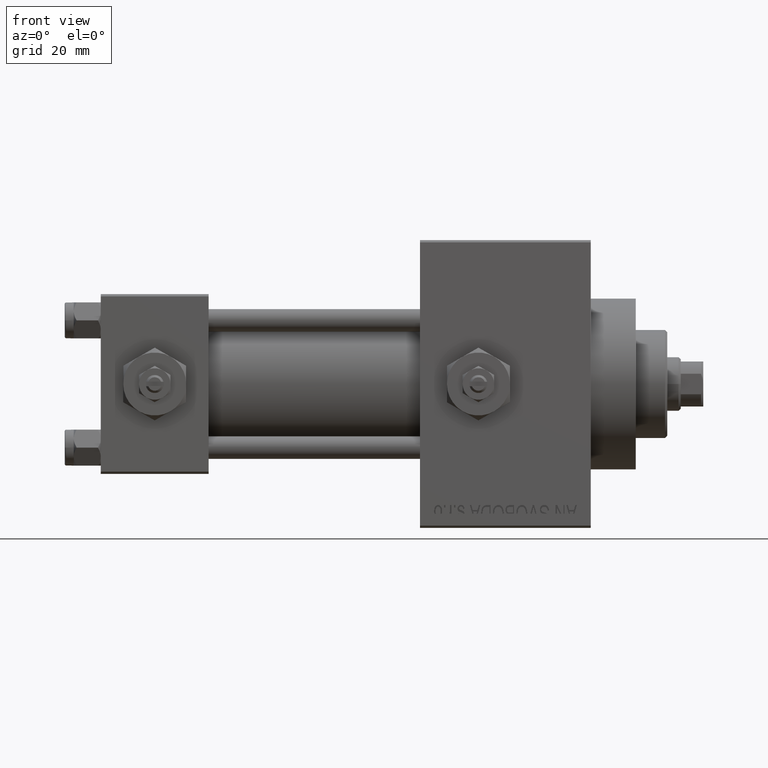
[diagram: clean part render]
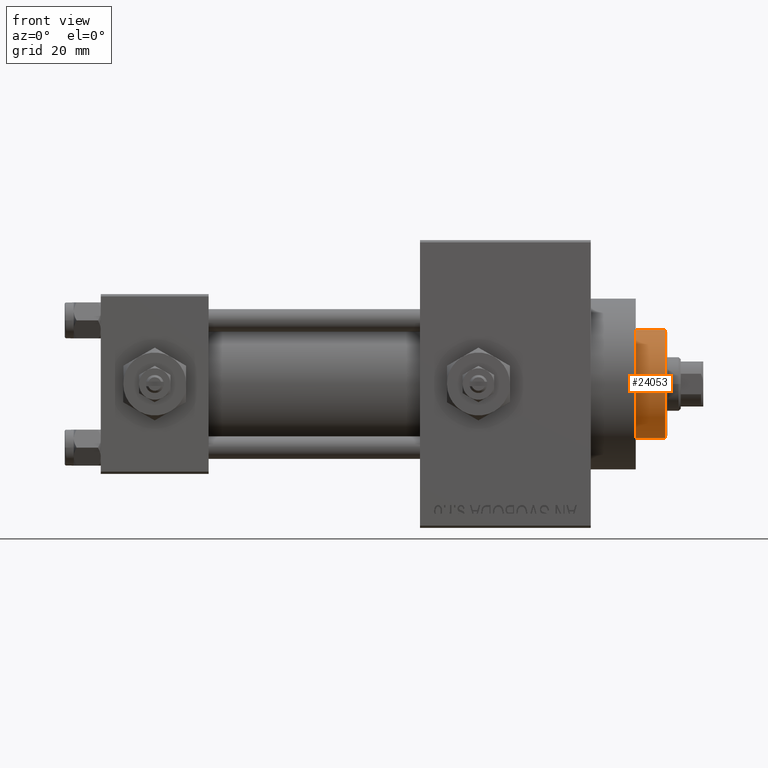
[diagram: same view with one face highlighted and labeled with its STEP entity id]
A machine part, front view. The second image highlights one B-rep face of the part: STEP entity #24053.
In plain terms, the highlighted cylindrical surface (partial cylindrical patch) has radius 12 mm, axis along (-1, 0, 0).
Its self-contained STEP definition (entity closure, byte-faithful):
#3190 = AXIS2_PLACEMENT_3D ( 'NONE', #37157, #27964, #8617 ) ;
#4720 = CIRCLE ( 'NONE', #48286, 12.00000000000000178 ) ;
#6305 = EDGE_CURVE ( 'NONE', #9711, #10517, #4720, .T. ) ;
#6941 = FACE_OUTER_BOUND ( 'NONE', #20767, .T. ) ;
#6989 = EDGE_CURVE ( 'NONE', #9646, #42914, #47545, .T. ) ;
#8298 = DIRECTION ( 'NONE',  ( 1.000000000000000000, 0.000000000000000000, 0.000000000000000000 ) ) ;
#8434 = VECTOR ( 'NONE', #45264, 1000.000000000000000 ) ;
#8617 = DIRECTION ( 'NONE',  ( 1.000000000000000000, 0.000000000000000000, 0.000000000000000000 ) ) ;
#9646 = VERTEX_POINT ( 'NONE', #19976 ) ;
#9711 = VERTEX_POINT ( 'NONE', #17229 ) ;
#9904 = EDGE_CURVE ( 'NONE', #9646, #10517, #15459, .T. ) ;
#10517 = VERTEX_POINT ( 'NONE', #23551 ) ;
#11989 = DIRECTION ( 'NONE',  ( -0.000000000000000000, -0.000000000000000000, -1.000000000000000000 ) ) ;
#13636 = ORIENTED_EDGE ( 'NONE', *, *, #6989, .T. ) ;
#14349 = CARTESIAN_POINT ( 'NONE',  ( 12.00000000000000178, 1.469576158976824144E-15, 49.76000000000000512 ) ) ;
#14783 = LINE ( 'NONE', #22462, #8434 ) ;
#15459 = LINE ( 'NONE', #23881, #30858 ) ;
#17229 = CARTESIAN_POINT ( 'NONE',  ( 12.00000000000000178, 1.469576158976824144E-15, 43.25999999999999801 ) ) ;
#19252 = AXIS2_PLACEMENT_3D ( 'NONE', #21832, #26059, #41162 ) ;
#19976 = CARTESIAN_POINT ( 'NONE',  ( -12.00000000000000178, 0.000000000000000000, 49.76000000000000512 ) ) ;
#20767 = EDGE_LOOP ( 'NONE', ( #13636, #48583, #26087, #25420 ) ) ;
#21832 = CARTESIAN_POINT ( 'NONE',  ( 0.000000000000000000, 0.000000000000000000, 50.25999999999999801 ) ) ;
#22462 = CARTESIAN_POINT ( 'NONE',  ( 12.00000000000000178, 1.469576158976824144E-15, 50.25999999999999801 ) ) ;
#23551 = CARTESIAN_POINT ( 'NONE',  ( -12.00000000000000178, 0.000000000000000000, 43.25999999999999801 ) ) ;
#23881 = CARTESIAN_POINT ( 'NONE',  ( -12.00000000000000178, 0.000000000000000000, 50.25999999999999801 ) ) ;
#24053 = ADVANCED_FACE ( 'NONE', ( #6941 ), #44887, .T. ) ;
#25420 = ORIENTED_EDGE ( 'NONE', *, *, #9904, .F. ) ;
#26059 = DIRECTION ( 'NONE',  ( -0.000000000000000000, -0.000000000000000000, -1.000000000000000000 ) ) ;
#26087 = ORIENTED_EDGE ( 'NONE', *, *, #6305, .T. ) ;
#27964 = DIRECTION ( 'NONE',  ( 0.000000000000000000, 0.000000000000000000, -1.000000000000000000 ) ) ;
#30485 = EDGE_CURVE ( 'NONE', #42914, #9711, #14783, .T. ) ;
#30858 = VECTOR ( 'NONE', #11989, 1000.000000000000000 ) ;
#31380 = CARTESIAN_POINT ( 'NONE',  ( 0.000000000000000000, 0.000000000000000000, 43.25999999999999801 ) ) ;
#37157 = CARTESIAN_POINT ( 'NONE',  ( 0.000000000000000000, 0.000000000000000000, 49.76000000000000512 ) ) ;
#39043 = DIRECTION ( 'NONE',  ( 0.000000000000000000, 0.000000000000000000, 1.000000000000000000 ) ) ;
#41162 = DIRECTION ( 'NONE',  ( -1.000000000000000000, 0.000000000000000000, 0.000000000000000000 ) ) ;
#42914 = VERTEX_POINT ( 'NONE', #14349 ) ;
#44887 = CYLINDRICAL_SURFACE ( 'NONE', #19252, 12.00000000000000178 ) ;
#45264 = DIRECTION ( 'NONE',  ( -0.000000000000000000, -0.000000000000000000, -1.000000000000000000 ) ) ;
#47545 = CIRCLE ( 'NONE', #3190, 12.00000000000000178 ) ;
#48286 = AXIS2_PLACEMENT_3D ( 'NONE', #31380, #39043, #8298 ) ;
#48583 = ORIENTED_EDGE ( 'NONE', *, *, #30485, .T. ) ;